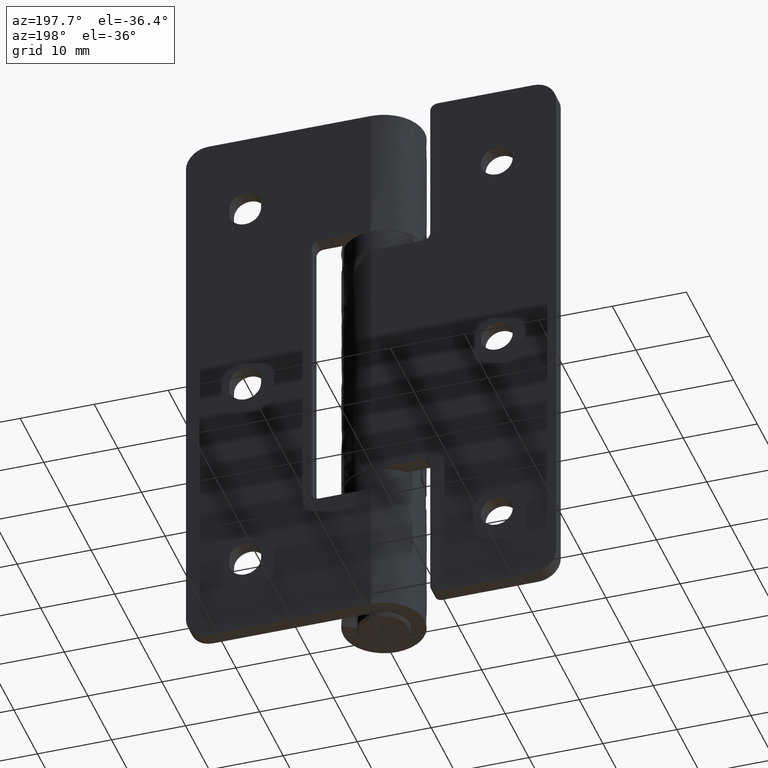
[diagram: clean part render]
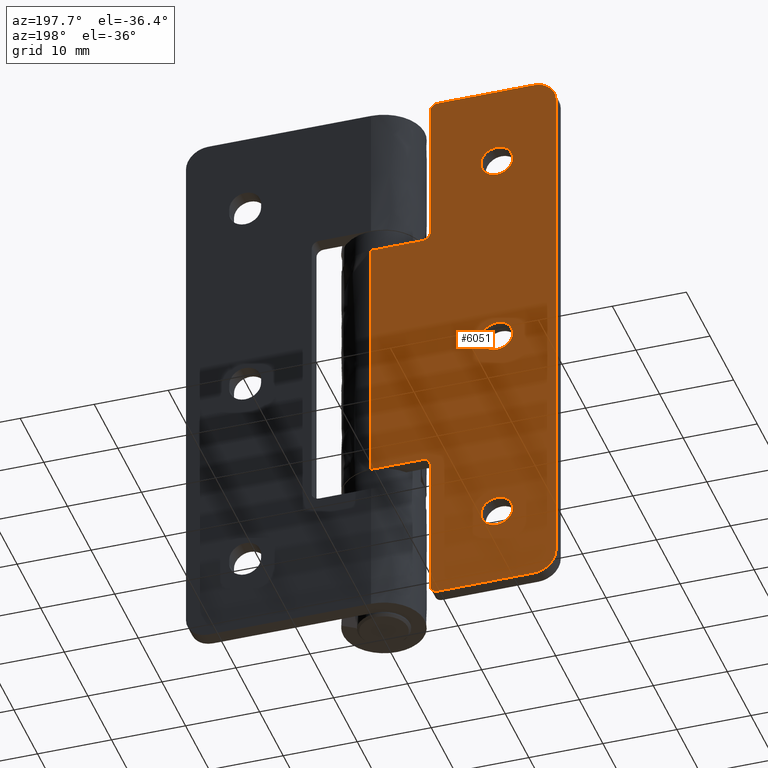
[diagram: same view with one face highlighted and labeled with its STEP entity id]
A machine part, auxiliary view. The second image highlights one B-rep face of the part: STEP entity #6051.
In plain terms, the highlighted face is a freeform B-spline surface patch.
Its self-contained STEP definition (entity closure, byte-faithful):
#4969=CARTESIAN_POINT('',(-15.547480945484500,5.500000000000229,37.414853445608173));
#4970=VERTEX_POINT('',#4969);
#4976=CARTESIAN_POINT('',(-16.999998877000081,5.500000000000229,36.850000000000300));
#4977=VERTEX_POINT('',#4976);
#4978=CARTESIAN_POINT('',(-16.999998877000081,5.500000000000229,36.850000000000300));
#4979=CARTESIAN_POINT('',(-16.717539007965659,5.500000000000223,36.849676340151682));
#4980=CARTESIAN_POINT('',(-16.186230449595861,5.500000000000251,36.956407735311053));
#4981=CARTESIAN_POINT('',(-15.731095294132510,5.500000000000215,37.246348218408400));
#4982=CARTESIAN_POINT('',(-15.547480945484500,5.500000000000229,37.414853445608173));
#4983=B_SPLINE_CURVE_WITH_KNOTS('',3,(#4978,#4979,#4980,#4981,#4982),.UNSPECIFIED.,.F.,.U.,(4,1,4),(0.000000028332201,0.847246262644758,1.594829172264955),.UNSPECIFIED.);
#4984=EDGE_CURVE('',#4977,#4970,#4983,.T.);
#4986=CARTESIAN_POINT('',(-19.149999999999999,5.500000000000229,39.0));
#4987=VERTEX_POINT('',#4986);
#4988=CARTESIAN_POINT('',(-19.149999999999999,5.500000000000229,39.0));
#4989=CARTESIAN_POINT('',(-19.150196301402779,5.500000000000226,38.753710343611750));
#4990=CARTESIAN_POINT('',(-19.088863383041961,5.500000000000235,38.402051418261728));
#4991=CARTESIAN_POINT('',(-18.888701359350758,5.500000000000229,37.950566378920144));
#4992=CARTESIAN_POINT('',(-18.672690833419349,5.500000000000224,37.627256662800328));
#4993=CARTESIAN_POINT('',(-18.385230024619212,5.500000000000233,37.339828051271468));
#4994=CARTESIAN_POINT('',(-18.006755906459759,5.500000000000276,37.080076261352261));
#4995=CARTESIAN_POINT('',(-17.545269801628908,5.500000000000118,36.895561486111831));
#4996=CARTESIAN_POINT('',(-17.175892411357260,5.500000000000297,36.849963361419569));
#4997=CARTESIAN_POINT('',(-16.999998877000081,5.500000000000229,36.850000000000300));
#4998=B_SPLINE_CURVE_WITH_KNOTS('',3,(#4988,#4989,#4990,#4991,#4992,#4993,#4994,#4995,#4996,#4997),.UNSPECIFIED.,.F.,.U.,(4,1,1,1,1,1,1,4),(0.000000057722211,0.738783703045975,1.055414240958711,1.477582446767213,1.899713102237543,2.269111085663024,2.849608437156288,3.377297483277404),.UNSPECIFIED.);
#4999=EDGE_CURVE('',#4987,#4977,#4998,.T.);
#5001=CARTESIAN_POINT('',(-18.452519054515509,5.500000000000229,40.585146554391827));
#5002=VERTEX_POINT('',#5001);
#5003=CARTESIAN_POINT('',(-18.452519054515509,5.500000000000229,40.585146554391827));
#5004=CARTESIAN_POINT('',(-18.658101389684340,5.500000000000230,40.397179347800673));
#5005=CARTESIAN_POINT('',(-18.915678234794900,5.500000000000226,40.046545313151377));
#5006=CARTESIAN_POINT('',(-19.113005175558840,5.500000000000243,39.482716924405487));
#5007=CARTESIAN_POINT('',(-19.150035633539829,5.500000000000212,39.167104527533958));
#5008=CARTESIAN_POINT('',(-19.149999999999999,5.500000000000229,39.0));
#5009=B_SPLINE_CURVE_WITH_KNOTS('',3,(#5003,#5004,#5005,#5006,#5007,#5008),.UNSPECIFIED.,.F.,.U.,(4,1,1,4),(0.000000017024057,0.835532058316047,1.281148529100793,1.782467558109210),.UNSPECIFIED.);
#5010=EDGE_CURVE('',#5002,#4987,#5009,.T.);
#5097=CARTESIAN_POINT('',(-17.000001122999951,5.500000000000229,41.149999999999707));
#5098=VERTEX_POINT('',#5097);
#5099=CARTESIAN_POINT('',(-17.000001122999951,5.500000000000229,41.149999999999707));
#5100=CARTESIAN_POINT('',(-17.215975896201900,5.500000000000229,41.150100517412902));
#5101=CARTESIAN_POINT('',(-17.598006334729639,5.500000000000229,41.091932301606377));
#5102=CARTESIAN_POINT('',(-18.087259226490058,5.500000000000234,40.875034377064793));
#5103=CARTESIAN_POINT('',(-18.342298878183140,5.500000000000220,40.686167603995777));
#5104=CARTESIAN_POINT('',(-18.452519054515509,5.500000000000229,40.585146554391827));
#5105=B_SPLINE_CURVE_WITH_KNOTS('',3,(#5099,#5100,#5101,#5102,#5103,#5104),.UNSPECIFIED.,.F.,.U.,(4,1,1,4),(0.000000028333376,0.647909759516003,1.146282767785366,1.594829172264934),.UNSPECIFIED.);
#5106=EDGE_CURVE('',#5098,#5002,#5105,.T.);
#5108=CARTESIAN_POINT('',(-14.850000000000000,5.500000000000229,39.0));
#5109=VERTEX_POINT('',#5108);
#5110=CARTESIAN_POINT('',(-14.850000000000000,5.500000000000229,39.0));
#5111=CARTESIAN_POINT('',(-14.849903111618930,5.500000000000230,39.211085875443800));
#5112=CARTESIAN_POINT('',(-14.902257354269420,5.500000000000235,39.562816057218122));
#5113=CARTESIAN_POINT('',(-15.118641767844659,5.500000000000224,40.085393079506993));
#5114=CARTESIAN_POINT('',(-15.446986243437239,5.500000000000228,40.528142215299653));
#5115=CARTESIAN_POINT('',(-15.884942041920519,5.500000000000233,40.861277580200628));
#5116=CARTESIAN_POINT('',(-16.402021880095919,5.500000000000225,41.090493572329173));
#5117=CARTESIAN_POINT('',(-16.771321229089061,5.500000000000251,41.150122150036523));
#5118=CARTESIAN_POINT('',(-17.000001122999951,5.500000000000229,41.149999999999707));
#5119=B_SPLINE_CURVE_WITH_KNOTS('',3,(#5110,#5111,#5112,#5113,#5114,#5115,#5116,#5117,#5118),.UNSPECIFIED.,.F.,.U.,(4,1,1,1,1,1,4),(0.000000057717990,0.633238866518724,1.055414240955507,1.688648774640088,2.269111085661566,2.691288542552654,3.377297483277503),.UNSPECIFIED.);
#5120=EDGE_CURVE('',#5109,#5098,#5119,.T.);
#5122=CARTESIAN_POINT('',(-15.547480945484500,5.500000000000229,37.414853445608173));
#5123=CARTESIAN_POINT('',(-15.341892051879309,5.500000000000231,37.602820701437253));
#5124=CARTESIAN_POINT('',(-15.106739558689180,5.500000000000231,37.922963633923906));
#5125=CARTESIAN_POINT('',(-14.895336977247540,5.500000000000229,38.480176448766557));
#5126=CARTESIAN_POINT('',(-14.849922381222230,5.500000000000232,38.795753935088527));
#5127=CARTESIAN_POINT('',(-14.850000000000000,5.500000000000229,39.0));
#5128=B_SPLINE_CURVE_WITH_KNOTS('',3,(#5122,#5123,#5124,#5125,#5126,#5127),.UNSPECIFIED.,.F.,.U.,(4,1,1,4),(0.000000017024288,0.835532058316191,1.169744082390658,1.782467558109206),.UNSPECIFIED.);
#5129=EDGE_CURVE('',#4970,#5109,#5128,.T.);
#5165=CARTESIAN_POINT('',(-15.547480945484500,5.500000000000229,9.414853445608173));
#5166=VERTEX_POINT('',#5165);
#5172=CARTESIAN_POINT('',(-16.999998877000081,5.500000000000229,8.850000000000295));
#5173=VERTEX_POINT('',#5172);
#5174=CARTESIAN_POINT('',(-16.999998877000081,5.500000000000229,8.850000000000295));
#5175=CARTESIAN_POINT('',(-16.784027163710579,5.500000000000230,8.849918031573537));
#5176=CARTESIAN_POINT('',(-16.401988460107891,5.500000000000227,8.908045724052064));
#5177=CARTESIAN_POINT('',(-15.912743152000260,5.500000000000235,9.124973836789650));
#5178=CARTESIAN_POINT('',(-15.657700984849720,5.500000000000223,9.313830695827146));
#5179=CARTESIAN_POINT('',(-15.547480945484500,5.500000000000229,9.414853445608173));
#5180=B_SPLINE_CURVE_WITH_KNOTS('',3,(#5174,#5175,#5176,#5177,#5178,#5179),.UNSPECIFIED.,.F.,.U.,(4,1,1,4),(0.000000028332455,0.647909759515562,1.146282767785301,1.594829172264949),.UNSPECIFIED.);
#5181=EDGE_CURVE('',#5173,#5166,#5180,.T.);
#5183=CARTESIAN_POINT('',(-19.149999999999999,5.500000000000229,11.0));
#5184=VERTEX_POINT('',#5183);
#5185=CARTESIAN_POINT('',(-19.149999999999999,5.500000000000229,11.0));
#5186=CARTESIAN_POINT('',(-19.150314900900650,5.500000000000232,10.718507790207150));
#5187=CARTESIAN_POINT('',(-19.065872465664690,5.500000000000220,10.296603634037821));
#5188=CARTESIAN_POINT('',(-18.799170962461830,5.500000000000230,9.797821791418928));
#5189=CARTESIAN_POINT('',(-18.530077402954340,5.500000000000232,9.469921617326842));
#5190=CARTESIAN_POINT('',(-18.161216568455458,5.500000000000229,9.167144834076138));
#5191=CARTESIAN_POINT('',(-17.650754967407469,5.500000000000231,8.917982903703045));
#5192=CARTESIAN_POINT('',(-17.228677315138640,5.500000000000228,8.849885817655585));
#5193=CARTESIAN_POINT('',(-16.999998877000081,5.500000000000229,8.850000000000295));
#5194=B_SPLINE_CURVE_WITH_KNOTS('',3,(#5185,#5186,#5187,#5188,#5189,#5190,#5191,#5192,#5193),.UNSPECIFIED.,.F.,.U.,(4,1,1,1,1,1,4),(0.000000057721323,0.844324508051732,1.266504055674185,1.688648774641927,2.110792728726397,2.691288542553280,3.377297483277447),.UNSPECIFIED.);
#5195=EDGE_CURVE('',#5184,#5173,#5194,.T.);
#5197=CARTESIAN_POINT('',(-18.452519054515509,5.500000000000229,12.585146554391830));
#5198=VERTEX_POINT('',#5197);
#5199=CARTESIAN_POINT('',(-18.452519054515509,5.500000000000229,12.585146554391830));
#5200=CARTESIAN_POINT('',(-18.658099785226050,5.500000000000235,12.397180529103929));
#5201=CARTESIAN_POINT('',(-18.915681475846011,5.500000000000231,12.046545384961011));
#5202=CARTESIAN_POINT('',(-19.113000864044150,5.500000000000225,11.482715755689290));
#5203=CARTESIAN_POINT('',(-19.150038909188620,5.500000000000232,11.167106198369851));
#5204=CARTESIAN_POINT('',(-19.149999999999999,5.500000000000229,11.0));
#5205=B_SPLINE_CURVE_WITH_KNOTS('',3,(#5199,#5200,#5201,#5202,#5203,#5204),.UNSPECIFIED.,.F.,.U.,(4,1,1,4),(0.000000017024977,0.835532058316226,1.281148529100858,1.782467558109209),.UNSPECIFIED.);
#5206=EDGE_CURVE('',#5198,#5184,#5205,.T.);
#5294=CARTESIAN_POINT('',(-17.000001122999951,5.500000000000229,13.149999999999711));
#5295=VERTEX_POINT('',#5294);
#5296=CARTESIAN_POINT('',(-17.000001122999951,5.500000000000229,13.149999999999711));
#5297=CARTESIAN_POINT('',(-17.249216400324549,5.500000000000222,13.150187363692130));
#5298=CARTESIAN_POINT('',(-17.780658293547908,5.500000000000242,13.056467194227171));
#5299=CARTESIAN_POINT('',(-18.244486319377810,5.500000000000230,12.776213754463569));
#5300=CARTESIAN_POINT('',(-18.452519054515509,5.500000000000229,12.585146554391830));
#5301=B_SPLINE_CURVE_WITH_KNOTS('',3,(#5296,#5297,#5298,#5299,#5300),.UNSPECIFIED.,.F.,.U.,(4,1,4),(0.000000028332493,0.747582937962251,1.594829172264918),.UNSPECIFIED.);
#5302=EDGE_CURVE('',#5295,#5198,#5301,.T.);
#5304=CARTESIAN_POINT('',(-14.850000000000000,5.500000000000229,11.0));
#5305=VERTEX_POINT('',#5304);
#5306=CARTESIAN_POINT('',(-14.850000000000000,5.500000000000229,11.0));
#5307=CARTESIAN_POINT('',(-14.849835681857829,5.500000000000233,11.246273719606741));
#5308=CARTESIAN_POINT('',(-14.923340227031840,5.500000000000219,11.668323205488811));
#5309=CARTESIAN_POINT('',(-15.178384969819369,5.500000000000243,12.174862510093631));
#5310=CARTESIAN_POINT('',(-15.469920389968170,5.500000000000217,12.530078108642840));
#5311=CARTESIAN_POINT('',(-15.838788508038260,5.500000000000232,12.832854934226081));
#5312=CARTESIAN_POINT('',(-16.349242845319541,5.500000000000219,13.082011544454780));
#5313=CARTESIAN_POINT('',(-16.771321229886020,5.500000000000267,13.150126784543501));
#5314=CARTESIAN_POINT('',(-17.000001122999951,5.500000000000229,13.149999999999711));
#5315=B_SPLINE_CURVE_WITH_KNOTS('',3,(#5306,#5307,#5308,#5309,#5310,#5311,#5312,#5313,#5314),.UNSPECIFIED.,.F.,.U.,(4,1,1,1,1,1,4),(0.000000057721970,0.738783703045545,1.266504055674235,1.688648774641929,2.110792728726318,2.691288542553253,3.377297483277453),.UNSPECIFIED.);
#5316=EDGE_CURVE('',#5305,#5295,#5315,.T.);
#5318=CARTESIAN_POINT('',(-15.547480945484500,5.500000000000229,9.414853445608173));
#5319=CARTESIAN_POINT('',(-15.341899170176230,5.500000000000218,9.602820146777312));
#5320=CARTESIAN_POINT('',(-15.084321372546761,5.500000000000263,9.953454858381953));
#5321=CARTESIAN_POINT('',(-14.886995016019050,5.500000000000190,10.517283054209370));
#5322=CARTESIAN_POINT('',(-14.849964525122120,5.500000000000258,10.832895177408281));
#5323=CARTESIAN_POINT('',(-14.850000000000000,5.500000000000229,11.0));
#5324=B_SPLINE_CURVE_WITH_KNOTS('',3,(#5318,#5319,#5320,#5321,#5322,#5323),.UNSPECIFIED.,.F.,.U.,(4,1,1,4),(0.000000017024453,0.835532058315987,1.281148529100776,1.782467558109210),.UNSPECIFIED.);
#5325=EDGE_CURVE('',#5166,#5305,#5324,.T.);
#5361=CARTESIAN_POINT('',(-15.547480945484500,5.500000000000229,65.414853445608173));
#5362=VERTEX_POINT('',#5361);
#5368=CARTESIAN_POINT('',(-16.999998877000081,5.500000000000229,64.850000000000307));
#5369=VERTEX_POINT('',#5368);
#5370=CARTESIAN_POINT('',(-16.999998877000081,5.500000000000229,64.850000000000307));
#5371=CARTESIAN_POINT('',(-16.750788198765019,5.500000000000236,64.849821629516384));
#5372=CARTESIAN_POINT('',(-16.219323407053292,5.500000000000221,64.943495432110183));
#5373=CARTESIAN_POINT('',(-15.755530897106331,5.500000000000235,65.223817431246388));
#5374=CARTESIAN_POINT('',(-15.547480945484500,5.500000000000229,65.414853445608173));
#5375=B_SPLINE_CURVE_WITH_KNOTS('',3,(#5370,#5371,#5372,#5373,#5374),.UNSPECIFIED.,.F.,.U.,(4,1,4),(0.000000028332115,0.747582937962125,1.594829172264943),.UNSPECIFIED.);
#5376=EDGE_CURVE('',#5369,#5362,#5375,.T.);
#5378=CARTESIAN_POINT('',(-19.149999999999999,5.500000000000229,67.0));
#5379=VERTEX_POINT('',#5378);
#5380=CARTESIAN_POINT('',(-19.149999999999999,5.500000000000229,67.0));
#5381=CARTESIAN_POINT('',(-19.150165148715420,5.500000000000231,66.753724761409813));
#5382=CARTESIAN_POINT('',(-19.076658029038541,5.500000000000229,66.331678680488906));
#5383=CARTESIAN_POINT('',(-18.821616485444789,5.500000000000230,65.825136451104328));
#5384=CARTESIAN_POINT('',(-18.530080954492870,5.500000000000240,65.469918551732405));
#5385=CARTESIAN_POINT('',(-18.188519735243379,5.500000000000227,65.189607495256027));
#5386=CARTESIAN_POINT('',(-17.685857509226089,5.500000000000233,64.928732270711834));
#5387=CARTESIAN_POINT('',(-17.263881965725211,5.500000000000218,64.849762787276504));
#5388=CARTESIAN_POINT('',(-16.999998877000081,5.500000000000229,64.850000000000307));
#5389=B_SPLINE_CURVE_WITH_KNOTS('',3,(#5380,#5381,#5382,#5383,#5384,#5385,#5386,#5387,#5388),.UNSPECIFIED.,.F.,.U.,(4,1,1,1,1,1,4),(0.000000057725817,0.738783703047419,1.266504055675519,1.688648774642987,2.110792728727288,2.585743883257214,3.377297483277376),.UNSPECIFIED.);
#5390=EDGE_CURVE('',#5379,#5369,#5389,.T.);
#5392=CARTESIAN_POINT('',(-18.452519054515509,5.500000000000228,68.585146554391827));
#5393=VERTEX_POINT('',#5392);
#5394=CARTESIAN_POINT('',(-18.452519054515509,5.500000000000228,68.585146554391827));
#5395=CARTESIAN_POINT('',(-18.658102450715042,5.500000000000227,68.397180161432644));
#5396=CARTESIAN_POINT('',(-18.915677669092730,5.500000000000229,68.046545362323243));
#5397=CARTESIAN_POINT('',(-19.113005429351588,5.500000000000227,67.482716122210860));
#5398=CARTESIAN_POINT('',(-19.150035257971471,5.500000000000230,67.167106252874149));
#5399=CARTESIAN_POINT('',(-19.149999999999999,5.500000000000229,67.0));
#5400=B_SPLINE_CURVE_WITH_KNOTS('',3,(#5394,#5395,#5396,#5397,#5398,#5399),.UNSPECIFIED.,.F.,.U.,(4,1,1,4),(0.000000017025555,0.835532058316310,1.281148529100995,1.782467558109199),.UNSPECIFIED.);
#5401=EDGE_CURVE('',#5393,#5379,#5400,.T.);
#5489=CARTESIAN_POINT('',(-17.000001122999951,5.500000000000228,69.149999999999721));
#5490=VERTEX_POINT('',#5489);
#5491=CARTESIAN_POINT('',(-17.000001122999951,5.500000000000228,69.149999999999721));
#5492=CARTESIAN_POINT('',(-17.215981916973391,5.500000000000237,69.150110500393225));
#5493=CARTESIAN_POINT('',(-17.564767654146578,5.500000000000215,69.096960891129044));
#5494=CARTESIAN_POINT('',(-18.057742735295520,5.500000000000236,68.891975201385577));
#5495=CARTESIAN_POINT('',(-18.317818739995399,5.500000000000223,68.708639817995802));
#5496=CARTESIAN_POINT('',(-18.452519054515509,5.500000000000228,68.585146554391827));
#5497=B_SPLINE_CURVE_WITH_KNOTS('',3,(#5491,#5492,#5493,#5494,#5495,#5496),.UNSPECIFIED.,.F.,.U.,(4,1,1,4),(0.000000028332360,0.647909759515443,1.046600607803213,1.594829172264936),.UNSPECIFIED.);
#5498=EDGE_CURVE('',#5490,#5393,#5497,.T.);
#5500=CARTESIAN_POINT('',(-14.850000000000000,5.500000000000229,67.0));
#5501=VERTEX_POINT('',#5500);
#5502=CARTESIAN_POINT('',(-14.850000000000000,5.500000000000229,67.0));
#5503=CARTESIAN_POINT('',(-14.849986990049480,5.500000000000230,67.140711880097740));
#5504=CARTESIAN_POINT('',(-14.881170192611080,5.500000000000233,67.457327369907361));
#5505=CARTESIAN_POINT('',(-15.025683425381130,5.500000000000225,67.894864948543884));
#5506=CARTESIAN_POINT('',(-15.243811972127180,5.500000000000235,68.258690388440371));
#5507=CARTESIAN_POINT('',(-15.497257140901690,5.500000000000219,68.552494364241511));
#5508=CARTESIAN_POINT('',(-15.838782097311279,5.500000000000227,68.832860362402371));
#5509=CARTESIAN_POINT('',(-16.349244703787068,5.500000000000233,69.082009465838908));
#5510=CARTESIAN_POINT('',(-16.771321448643960,5.500000000000253,69.150127075767642));
#5511=CARTESIAN_POINT('',(-17.000001122999951,5.500000000000228,69.149999999999721));
#5512=B_SPLINE_CURVE_WITH_KNOTS('',3,(#5502,#5503,#5504,#5505,#5506,#5507,#5508,#5509,#5510,#5511),.UNSPECIFIED.,.F.,.U.,(4,1,1,1,1,1,1,4),(0.000000057726401,0.422145123423234,0.949868354319807,1.372045012490239,1.688648774643703,2.110792728727647,2.691288542554024,3.377297483277410),.UNSPECIFIED.);
#5513=EDGE_CURVE('',#5501,#5490,#5512,.T.);
#5515=CARTESIAN_POINT('',(-15.547480945484500,5.500000000000229,65.414853445608173));
#5516=CARTESIAN_POINT('',(-15.341899290102690,5.500000000000245,65.602820165102898));
#5517=CARTESIAN_POINT('',(-15.084321033579871,5.500000000000188,65.953454835129591));
#5518=CARTESIAN_POINT('',(-14.886995555011231,5.500000000000289,66.517283142230610));
#5519=CARTESIAN_POINT('',(-14.849963843230091,5.500000000000187,66.832894241441650));
#5520=CARTESIAN_POINT('',(-14.850000000000000,5.500000000000229,67.0));
#5521=B_SPLINE_CURVE_WITH_KNOTS('',3,(#5515,#5516,#5517,#5518,#5519,#5520),.UNSPECIFIED.,.F.,.U.,(4,1,1,4),(0.000000017027068,0.835532058317011,1.281148529100942,1.782467558109214),.UNSPECIFIED.);
#5522=EDGE_CURVE('',#5362,#5501,#5521,.T.);
#5557=CARTESIAN_POINT('',(-9.0,5.500000000000229,0.0));
#5558=VERTEX_POINT('',#5557);
#5564=CARTESIAN_POINT('',(-8.0,5.500000000000229,0.999999999999915));
#5565=VERTEX_POINT('',#5564);
#5566=CARTESIAN_POINT('',(-8.0,5.500000000000229,0.999999999999915));
#5567=CARTESIAN_POINT('',(-7.999815948241406,5.500000000000246,0.860888660539468));
#5568=CARTESIAN_POINT('',(-8.050333143350708,5.500000000000252,0.623781137559542));
#5569=CARTESIAN_POINT('',(-8.214074352611142,5.500000000000267,0.365281371980520));
#5570=CARTESIAN_POINT('',(-8.410547553616899,5.500000000000284,0.178196455981690));
#5571=CARTESIAN_POINT('',(-8.664599915572296,5.500000000000221,0.038353219154053));
#5572=CARTESIAN_POINT('',(-8.885455931278516,5.500000000000263,-0.000065769832042));
#5573=CARTESIAN_POINT('',(-9.0,5.500000000000229,0.0));
#5574=B_SPLINE_CURVE_WITH_KNOTS('',3,(#5566,#5567,#5568,#5569,#5570,#5571,#5572,#5573),.UNSPECIFIED.,.F.,.U.,(4,1,1,1,1,4),(0.000000190634222,0.417255613775690,0.711792073891634,0.908118885506224,1.227218004027974,1.570835744366216),.UNSPECIFIED.);
#5575=EDGE_CURVE('',#5565,#5558,#5574,.T.);
#5614=CARTESIAN_POINT('',(-8.0,5.500000000000229,77.0));
#5615=VERTEX_POINT('',#5614);
#5621=CARTESIAN_POINT('',(-9.0,5.500000000000229,78.0));
#5622=VERTEX_POINT('',#5621);
#5623=CARTESIAN_POINT('',(-9.0,5.500000000000229,78.0));
#5624=CARTESIAN_POINT('',(-8.877266397706078,5.500000000000225,78.000108451507430));
#5625=CARTESIAN_POINT('',(-8.640085774690272,5.500000000000230,77.955761091599896));
#5626=CARTESIAN_POINT('',(-8.376584025182886,5.500000000000225,77.797887028194523));
#5627=CARTESIAN_POINT('',(-8.200917595131665,5.500000000000226,77.613237321975546));
#5628=CARTESIAN_POINT('',(-8.049714864853083,5.500000000000242,77.368001097920768));
#5629=CARTESIAN_POINT('',(-7.999761223935395,5.500000000000244,77.147311909529790));
#5630=CARTESIAN_POINT('',(-8.0,5.500000000000229,77.0));
#5631=B_SPLINE_CURVE_WITH_KNOTS('',3,(#5623,#5624,#5625,#5626,#5627,#5628,#5629,#5630),.UNSPECIFIED.,.F.,.U.,(4,1,1,1,1,4),(0.000000190629848,0.368164290177551,0.711792073888968,0.908118885504360,1.129035800120159,1.570835744366328),.UNSPECIFIED.);
#5632=EDGE_CURVE('',#5622,#5615,#5631,.T.);
#5656=CARTESIAN_POINT('',(-25.0,5.500000000000229,75.0));
#5657=VERTEX_POINT('',#5656);
#5658=CARTESIAN_POINT('',(-22.000000000000249,5.500000000000229,78.0));
#5659=VERTEX_POINT('',#5658);
#5660=CARTESIAN_POINT('',(-25.0,5.500000000000229,75.0));
#5661=CARTESIAN_POINT('',(-25.000029461697650,5.500000000000227,75.208617861377462));
#5662=CARTESIAN_POINT('',(-24.960156159635851,5.500000000000234,75.589033270263769));
#5663=CARTESIAN_POINT('',(-24.784975567673531,5.500000000000254,76.166605101730866));
#5664=CARTESIAN_POINT('',(-24.523060273041690,5.500000000000162,76.656610317664928));
#5665=CARTESIAN_POINT('',(-24.166474565209970,5.500000000000298,77.096554098067458));
#5666=CARTESIAN_POINT('',(-23.785909373889581,5.500000000000203,77.428921970342969));
#5667=CARTESIAN_POINT('',(-23.323015647736611,5.500000000000228,77.710251771670428));
#5668=CARTESIAN_POINT('',(-22.736273139867340,5.500000000000251,77.936615156176899));
#5669=CARTESIAN_POINT('',(-22.269987229435721,5.500000000000188,78.000085906247421));
#5670=CARTESIAN_POINT('',(-22.000000000000249,5.500000000000229,78.0));
#5671=B_SPLINE_CURVE_WITH_KNOTS('',3,(#5660,#5661,#5662,#5663,#5664,#5665,#5666,#5667,#5668,#5669,#5670),.UNSPECIFIED.,.F.,.U.,(4,1,1,1,1,1,1,1,4),(0.000000112339982,0.625853452172067,1.141288488457871,1.803989831315576,2.282592096892732,2.834800403711135,3.313414006845090,3.902475667534200,4.712418548635455),.UNSPECIFIED.);
#5672=EDGE_CURVE('',#5657,#5659,#5671,.T.);
#5718=CARTESIAN_POINT('',(-22.000000000000249,5.500000000000229,0.0));
#5719=VERTEX_POINT('',#5718);
#5720=CARTESIAN_POINT('',(-25.0,5.500000000000229,2.999999999999890));
#5721=VERTEX_POINT('',#5720);
#5722=CARTESIAN_POINT('',(-22.000000000000249,5.500000000000229,0.0));
#5723=CARTESIAN_POINT('',(-22.368216871714061,5.500000000000282,-0.000353784434919));
#5724=CARTESIAN_POINT('',(-22.907918597239561,5.500000000000151,0.100706331003966));
#5725=CARTESIAN_POINT('',(-23.594195751483468,5.500000000000268,0.435738619823814));
#5726=CARTESIAN_POINT('',(-24.144542087695481,5.500000000000206,0.854320334101150));
#5727=CARTESIAN_POINT('',(-24.587187438329352,5.500000000000310,1.421531488201872));
#5728=CARTESIAN_POINT('',(-24.916940950512181,5.500000000000095,2.165622902757415));
#5729=CARTESIAN_POINT('',(-25.000191278475260,5.500000000000345,2.680908091960277));
#5730=CARTESIAN_POINT('',(-25.0,5.500000000000229,2.999999999999890));
#5731=B_SPLINE_CURVE_WITH_KNOTS('',3,(#5722,#5723,#5724,#5725,#5726,#5727,#5728,#5729,#5730),.UNSPECIFIED.,.F.,.U.,(4,1,1,1,1,1,4),(0.000000112345897,1.104471261153377,1.619896332899721,2.282592096890881,3.166152209538145,3.755213870227222,4.712418548635380),.UNSPECIFIED.);
#5732=EDGE_CURVE('',#5719,#5721,#5731,.T.);
#5777=CARTESIAN_POINT('',(-8.0,5.500000000000229,20.500000000000298));
#5778=VERTEX_POINT('',#5777);
#5779=CARTESIAN_POINT('',(-8.0,5.500000000000229,0.999999999999915));
#5780=CARTESIAN_POINT('',(-8.0,5.500000000000229,20.500000000000298));
#5781=QUASI_UNIFORM_CURVE('',1,(#5779,#5780),.UNSPECIFIED.,.F.,.U.);
#5782=EDGE_CURVE('',#5565,#5778,#5781,.T.);
#5797=CARTESIAN_POINT('',(-8.0,5.500000000000229,57.500000000000000));
#5798=VERTEX_POINT('',#5797);
#5799=CARTESIAN_POINT('',(-8.0,5.500000000000229,57.500000000000000));
#5800=CARTESIAN_POINT('',(-8.0,5.500000000000229,77.0));
#5801=QUASI_UNIFORM_CURVE('',1,(#5799,#5800),.UNSPECIFIED.,.F.,.U.);
#5802=EDGE_CURVE('',#5798,#5615,#5801,.T.);
#5825=CARTESIAN_POINT('',(-9.0,5.500000000000229,0.0));
#5826=CARTESIAN_POINT('',(-22.000000000000249,5.500000000000229,0.0));
#5827=QUASI_UNIFORM_CURVE('',1,(#5825,#5826),.UNSPECIFIED.,.F.,.U.);
#5828=EDGE_CURVE('',#5558,#5719,#5827,.T.);
#5851=CARTESIAN_POINT('',(-9.0,5.500000000000229,78.0));
#5852=CARTESIAN_POINT('',(-22.000000000000249,5.500000000000229,78.0));
#5853=QUASI_UNIFORM_CURVE('',1,(#5851,#5852),.UNSPECIFIED.,.F.,.U.);
#5854=EDGE_CURVE('',#5622,#5659,#5853,.T.);
#5865=CARTESIAN_POINT('',(-25.0,5.500000000000229,75.0));
#5866=CARTESIAN_POINT('',(-25.0,5.500000000000229,2.999999999999890));
#5867=QUASI_UNIFORM_CURVE('',1,(#5865,#5866),.UNSPECIFIED.,.F.,.U.);
#5868=EDGE_CURVE('',#5657,#5721,#5867,.T.);
#5966=CARTESIAN_POINT('',(-26.248749951545140,5.500000000000229,81.896099848820882));
#5967=CARTESIAN_POINT('',(-26.248749951545140,5.500000000000229,-3.896101940943893));
#5968=CARTESIAN_POINT('',(1.248750622097164,5.500000000000229,81.896099848820867));
#5969=CARTESIAN_POINT('',(1.248750622097164,5.500000000000229,-3.896101940943893));
#5970=B_SPLINE_SURFACE_WITH_KNOTS('',1,1,((#5966,#5968),(#5967,#5969)),.UNSPECIFIED.,.F.,.F.,.U.,(2,2),(2,2),(0.0,85.792201789764775),(0.0,27.497500573642299),.UNSPECIFIED.);
#5971=ORIENTED_EDGE('',*,*,#5854,.F.);
#5972=ORIENTED_EDGE('',*,*,#5632,.T.);
#5973=ORIENTED_EDGE('',*,*,#5802,.F.);
#5974=CARTESIAN_POINT('',(-7.0,5.500000000000229,56.500000000000000));
#5975=VERTEX_POINT('',#5974);
#5976=CARTESIAN_POINT('',(-8.0,5.500000000000229,57.500000000000000));
#5977=CARTESIAN_POINT('',(-8.000110422903001,5.500000000000240,57.377267176395797));
#5978=CARTESIAN_POINT('',(-7.960320262963621,5.500000000000272,57.164637862775422));
#5979=CARTESIAN_POINT('',(-7.797150277637599,5.500000000000275,56.868040054044442));
#5980=CARTESIAN_POINT('',(-7.565514002203454,5.500000000000296,56.652832112738700));
#5981=CARTESIAN_POINT('',(-7.278147166651539,5.500000000000245,56.525567914748770));
#5982=CARTESIAN_POINT('',(-7.089992058980966,5.500000000000241,56.499972935851993));
#5983=CARTESIAN_POINT('',(-7.0,5.500000000000229,56.500000000000000));
#5984=B_SPLINE_CURVE_WITH_KNOTS('',3,(#5976,#5977,#5978,#5979,#5980,#5981,#5982,#5983),.UNSPECIFIED.,.F.,.U.,(4,1,1,1,1,4),(0.000000190633364,0.368164290180335,0.638160933825490,1.006313740651909,1.300856520302933,1.570835744366328),.UNSPECIFIED.);
#5985=EDGE_CURVE('',#5798,#5975,#5984,.T.);
#5986=ORIENTED_EDGE('',*,*,#5985,.T.);
#5987=CARTESIAN_POINT('',(-2.273737E-013,5.500000000000229,56.500000000000000));
#5988=VERTEX_POINT('',#5987);
#5989=CARTESIAN_POINT('',(-2.273737E-013,5.500000000000229,56.500000000000000));
#5990=CARTESIAN_POINT('',(-7.0,5.500000000000229,56.500000000000000));
#5991=QUASI_UNIFORM_CURVE('',1,(#5989,#5990),.UNSPECIFIED.,.F.,.U.);
#5992=EDGE_CURVE('',#5988,#5975,#5991,.T.);
#5993=ORIENTED_EDGE('',*,*,#5992,.F.);
#5994=CARTESIAN_POINT('',(-2.273737E-013,5.500000000000229,21.500000000000298));
#5995=VERTEX_POINT('',#5994);
#5996=CARTESIAN_POINT('',(-2.273737E-013,5.500000000000229,56.500000000000000));
#5997=CARTESIAN_POINT('',(-2.273737E-013,5.500000000000229,21.500000000000298));
#5998=QUASI_UNIFORM_CURVE('',1,(#5996,#5997),.UNSPECIFIED.,.F.,.U.);
#5999=EDGE_CURVE('',#5988,#5995,#5998,.T.);
#6000=ORIENTED_EDGE('',*,*,#5999,.T.);
#6001=CARTESIAN_POINT('',(-7.0,5.500000000000229,21.500000000000298));
#6002=VERTEX_POINT('',#6001);
#6003=CARTESIAN_POINT('',(-7.0,5.500000000000229,21.500000000000298));
#6004=CARTESIAN_POINT('',(-2.273737E-013,5.500000000000229,21.500000000000298));
#6005=QUASI_UNIFORM_CURVE('',1,(#6003,#6004),.UNSPECIFIED.,.F.,.U.);
#6006=EDGE_CURVE('',#6002,#5995,#6005,.T.);
#6007=ORIENTED_EDGE('',*,*,#6006,.F.);
#6008=CARTESIAN_POINT('',(-7.0,5.500000000000229,21.500000000000298));
#6009=CARTESIAN_POINT('',(-7.122727189834089,5.500000000000251,21.500100346066830));
#6010=CARTESIAN_POINT('',(-7.343570353890786,5.500000000000236,21.458823726265820));
#6011=CARTESIAN_POINT('',(-7.595396547412201,5.500000000000282,21.316116451931158));
#6012=CARTESIAN_POINT('',(-7.779963246270017,5.500000000000257,21.140380731884541));
#6013=CARTESIAN_POINT('',(-7.946597793792892,5.500000000000269,20.884351941891548));
#6014=CARTESIAN_POINT('',(-8.000231299488425,5.500000000000237,20.647308058402260));
#6015=CARTESIAN_POINT('',(-8.0,5.500000000000229,20.500000000000298));
#6016=B_SPLINE_CURVE_WITH_KNOTS('',3,(#6008,#6009,#6010,#6011,#6012,#6013,#6014,#6015),.UNSPECIFIED.,.F.,.U.,(4,1,1,1,1,4),(0.000000190633310,0.368164290180587,0.662718768424215,0.859050125890115,1.129035800121427,1.570835744366331),.UNSPECIFIED.);
#6017=EDGE_CURVE('',#6002,#5778,#6016,.T.);
#6018=ORIENTED_EDGE('',*,*,#6017,.T.);
#6019=ORIENTED_EDGE('',*,*,#5782,.F.);
#6020=ORIENTED_EDGE('',*,*,#5575,.T.);
#6021=ORIENTED_EDGE('',*,*,#5828,.T.);
#6022=ORIENTED_EDGE('',*,*,#5732,.T.);
#6023=ORIENTED_EDGE('',*,*,#5868,.F.);
#6024=ORIENTED_EDGE('',*,*,#5672,.T.);
#6025=EDGE_LOOP('',(#5971,#5972,#5973,#5986,#5993,#6000,#6007,#6018,#6019,#6020,#6021,#6022,#6023,#6024));
#6026=FACE_OUTER_BOUND('',#6025,.T.);
#6027=ORIENTED_EDGE('',*,*,#5316,.T.);
#6028=ORIENTED_EDGE('',*,*,#5302,.T.);
#6029=ORIENTED_EDGE('',*,*,#5206,.T.);
#6030=ORIENTED_EDGE('',*,*,#5195,.T.);
#6031=ORIENTED_EDGE('',*,*,#5181,.T.);
#6032=ORIENTED_EDGE('',*,*,#5325,.T.);
#6033=EDGE_LOOP('',(#6027,#6028,#6029,#6030,#6031,#6032));
#6034=FACE_BOUND('',#6033,.T.);
#6035=ORIENTED_EDGE('',*,*,#5513,.T.);
#6036=ORIENTED_EDGE('',*,*,#5498,.T.);
#6037=ORIENTED_EDGE('',*,*,#5401,.T.);
#6038=ORIENTED_EDGE('',*,*,#5390,.T.);
#6039=ORIENTED_EDGE('',*,*,#5376,.T.);
#6040=ORIENTED_EDGE('',*,*,#5522,.T.);
#6041=EDGE_LOOP('',(#6035,#6036,#6037,#6038,#6039,#6040));
#6042=FACE_BOUND('',#6041,.T.);
#6043=ORIENTED_EDGE('',*,*,#5120,.T.);
#6044=ORIENTED_EDGE('',*,*,#5106,.T.);
#6045=ORIENTED_EDGE('',*,*,#5010,.T.);
#6046=ORIENTED_EDGE('',*,*,#4999,.T.);
#6047=ORIENTED_EDGE('',*,*,#4984,.T.);
#6048=ORIENTED_EDGE('',*,*,#5129,.T.);
#6049=EDGE_LOOP('',(#6043,#6044,#6045,#6046,#6047,#6048));
#6050=FACE_BOUND('',#6049,.T.);
#6051=ADVANCED_FACE('',(#6026,#6034,#6042,#6050),#5970,.F.);